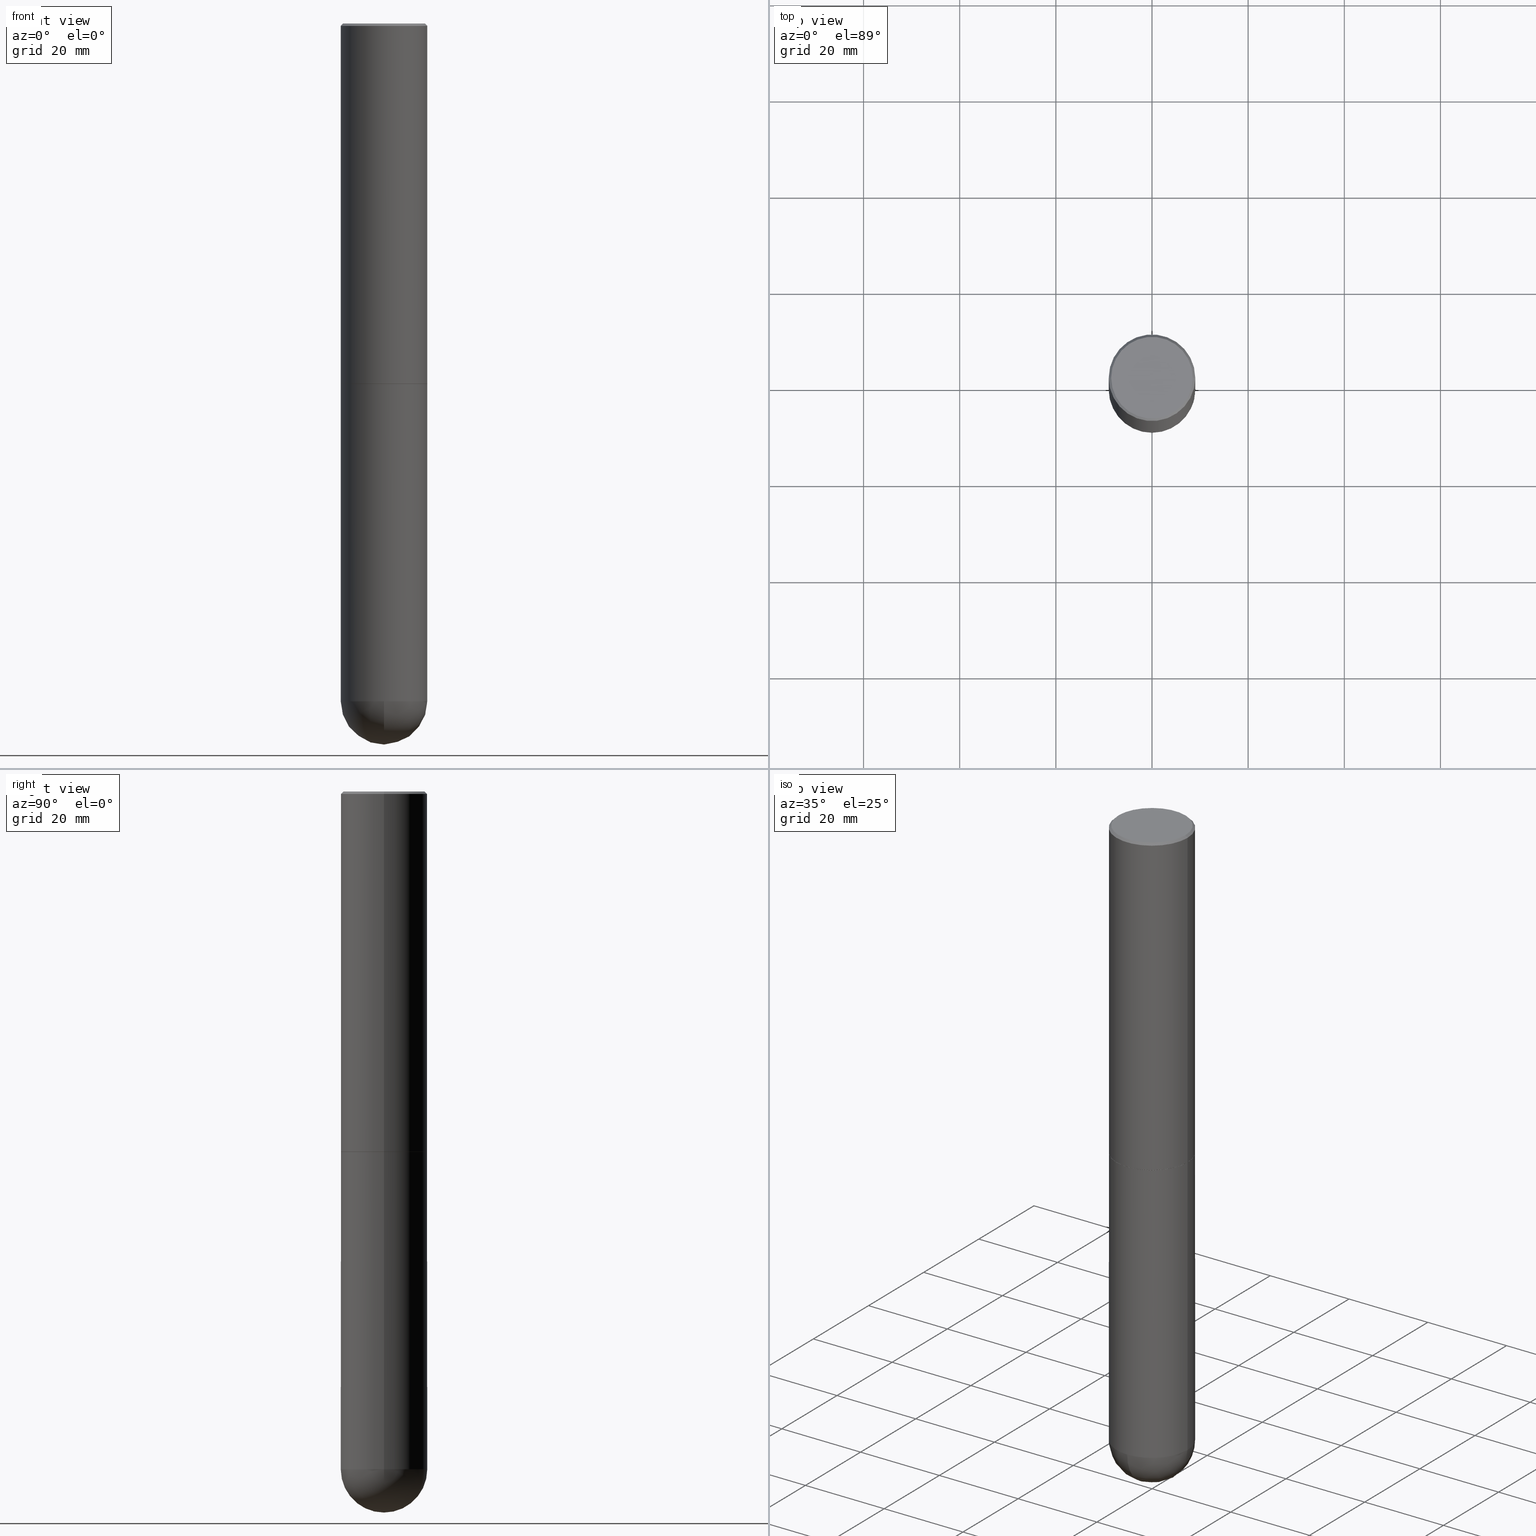
[diagram: canonical four-view strip — front | top / right | iso, engineering-drawing reading convention]
A machine part, canonical four-view strip (front | top / right | iso — engineering-drawing reading convention). The complete STEP part file that produces these views, byte-faithful:
ISO-10303-21;
HEADER;
FILE_DESCRIPTION (( 'STEP AP203' ),
    '1' );
FILE_NAME ('49580.STEP',
    '2024-04-10T12:28:57',
    ( '' ),
    ( '' ),
    'SwSTEP 2.0',
    'SolidWorks 2023',
    '' );
FILE_SCHEMA (( 'CONFIG_CONTROL_DESIGN' ));
ENDSEC;

DATA;
#1 = DIRECTION ( 'NONE',  ( 1.000000000000000000, -6.982962677686267499E-15, 0.000000000000000000 ) ) ;
#2 = FACE_OUTER_BOUND ( 'NONE', #69, .T. ) ;
#3 = AXIS2_PLACEMENT_3D ( 'NONE', #310, #214, #154 ) ;
#4 = ORIENTED_EDGE ( 'NONE', *, *, #315, .F. ) ;
#5 = ADVANCED_BREP_SHAPE_REPRESENTATION ( '49580', ( #373, #380, #232 ), #332 ) ;
#6 = ORIENTED_EDGE ( 'NONE', *, *, #140, .T. ) ;
#7 = ADVANCED_FACE ( 'NONE', ( #362 ), #335, .T. ) ;
#8 = AXIS2_PLACEMENT_3D ( 'NONE', #55, #186, #92 ) ;
#9 = PERSON_AND_ORGANIZATION_ROLE ( 'creator' ) ;
#10 = ORIENTED_EDGE ( 'NONE', *, *, #99, .F. ) ;
#11 = PERSON_AND_ORGANIZATION ( #381, #57 ) ;
#12 = CARTESIAN_POINT ( 'NONE',  ( 7.220735744022853640E-29, -1.030929694920215659E-14, -2.952700000000000546 ) ) ;
#13 = CALENDAR_DATE ( 2024, 10, 4 ) ;
#14 = AXIS2_PLACEMENT_3D ( 'NONE', #17, #175, #179 ) ;
#15 = ORIENTED_EDGE ( 'NONE', *, *, #26, .F. ) ;
#16 = CIRCLE ( 'NONE', #220, 0.3343500000000000916 ) ;
#17 = CARTESIAN_POINT ( 'NONE',  ( 4.890937612370293302E-31, -6.982962677686318726E-17, -0.02000000000000008021 ) ) ;
#18 = EDGE_CURVE ( 'NONE', #235, #320, #323, .T. ) ;
#19 = PERSON_AND_ORGANIZATION_ROLE ( 'classification_officer' ) ;
#20 = DIRECTION ( 'NONE',  ( -2.445468806185136597E-29, 3.491481338843145583E-15, 1.000000000000000000 ) ) ;
#21 = DIRECTION ( 'NONE',  ( -1.000000000000000000, 6.982962677686266711E-15, 0.000000000000000000 ) ) ;
#22 =( NAMED_UNIT ( * ) PLANE_ANGLE_UNIT ( ) SI_UNIT ( $, .RADIAN. ) );
#23 = DIRECTION ( 'NONE',  ( 1.000000000000000000, -6.982962677686265922E-15, 0.000000000000000000 ) ) ;
#24 = CIRCLE ( 'NONE', #324, 0.3543500000000002204 ) ;
#25 = CARTESIAN_POINT ( 'NONE',  ( -0.3543499999999999983, -1.232770860749472484E-14, -2.952700000000000102 ) ) ;
#26 = EDGE_CURVE ( 'NONE', #41, #116, #259, .T. ) ;
#27 = CARTESIAN_POINT ( 'NONE',  ( 2.474412824838200480E-15, 0.3543499999999896732, -2.952700000000000990 ) ) ;
#28 = DIRECTION ( 'NONE',  ( -2.445468806185136597E-29, 3.491481338843145583E-15, 1.000000000000000000 ) ) ;
#29 = DIRECTION ( 'NONE',  ( 2.438088387897960049E-29, -3.491481338843145188E-15, -1.000000000000000000 ) ) ;
#30 = DIRECTION ( 'NONE',  ( 2.438088387897960049E-29, -3.491481338843145188E-15, -1.000000000000000000 ) ) ;
#31 = CIRCLE ( 'NONE', #202, 0.3533499999999999974 ) ;
#32 = AXIS2_PLACEMENT_3D ( 'NONE', #343, #122, #190 ) ;
#33 = CARTESIAN_POINT ( 'NONE',  ( 0.3543500000000002204, -2.474412824838130272E-15, 1.727873240503290870E-29 ) ) ;
#34 = ADVANCED_FACE ( 'NONE', ( #326 ), #177, .F. ) ;
#35 = PRODUCT_RELATED_PRODUCT_CATEGORY ( 'detail', '', ( #193 ) ) ;
#36 = ORIENTED_EDGE ( 'NONE', *, *, #70, .T. ) ;
#37 = ORIENTED_EDGE ( 'NONE', *, *, #294, .F. ) ;
#38 = ORIENTED_EDGE ( 'NONE', *, *, #173, .T. ) ;
#39 = COORDINATED_UNIVERSAL_TIME_OFFSET ( 5, 0, .BEHIND. ) ;
#40 = VECTOR ( 'NONE', #405, 39.37007874015748143 ) ;
#41 = VERTEX_POINT ( 'NONE', #306 ) ;
#42 = APPROVAL_ROLE ( '' ) ;
#43 = ORIENTED_EDGE ( 'NONE', *, *, #283, .F. ) ;
#44 = APPROVAL_ROLE ( '' ) ;
#45 = EDGE_LOOP ( 'NONE', ( #10, #132 ) ) ;
#46 = COORDINATED_UNIVERSAL_TIME_OFFSET ( 5, 0, .BEHIND. ) ;
#47 = EDGE_CURVE ( 'NONE', #97, #356, #24, .T. ) ;
#48 = CLOSED_SHELL ( 'NONE', ( #360, #344, #7, #226, #218 ) ) ;
#49 = ORIENTED_EDGE ( 'NONE', *, *, #47, .F. ) ;
#50 = CC_DESIGN_APPROVAL ( #95, ( #387 ) ) ;
#51 = CALENDAR_DATE ( 2024, 10, 4 ) ;
#52 = LINE ( 'NONE', #366, #165 ) ;
#53 = FACE_OUTER_BOUND ( 'NONE', #394, .T. ) ;
#54 = DIRECTION ( 'NONE',  ( -2.445468806185136597E-29, 3.491481338843145583E-15, 1.000000000000000000 ) ) ;
#55 = CARTESIAN_POINT ( 'NONE',  ( 0.000000000000000000, 0.000000000000000000, 0.000000000000000000 ) ) ;
#56 = AXIS2_PLACEMENT_3D ( 'NONE', #111, #230, #297 ) ;
#57 = ORGANIZATION ( 'UNSPECIFIED', 'UNSPECIFIED', '' ) ;
#58 =( LENGTH_UNIT ( ) NAMED_UNIT ( * ) SI_UNIT ( $, .METRE. ) );
#59 = DIRECTION ( 'NONE',  ( 1.000000000000000000, -6.982962677686267499E-15, 0.000000000000000000 ) ) ;
#60 = CARTESIAN_POINT ( 'NONE',  ( -2.517808184165781285E-15, -0.3543500000000196493, -5.551149999999998919 ) ) ;
#61 = DIRECTION ( 'NONE',  ( -2.445468806185136597E-29, 3.491481338843145583E-15, 1.000000000000000000 ) ) ;
#62 = FACE_OUTER_BOUND ( 'NONE', #80, .T. ) ;
#63 = CC_DESIGN_PERSON_AND_ORGANIZATION_ASSIGNMENT ( #11, #333, ( #110 ) ) ;
#64 = AXIS2_PLACEMENT_3D ( 'NONE', #115, #334, #216 ) ;
#65 = APPLICATION_CONTEXT ( 'configuration controlled 3d designs of mechanical parts and assemblies' ) ;
#66 = ORIENTED_EDGE ( 'NONE', *, *, #408, .F. ) ;
#67 = ADVANCED_FACE ( 'NONE', ( #207 ), #368, .T. ) ;
#68 = AXIS2_PLACEMENT_3D ( 'NONE', #382, #250, #313 ) ;
#69 = EDGE_LOOP ( 'NONE', ( #350, #166, #133, #172 ) ) ;
#70 = EDGE_CURVE ( 'NONE', #97, #392, #411, .T. ) ;
#71 = VERTEX_POINT ( 'NONE', #402 ) ;
#72 = APPLICATION_PROTOCOL_DEFINITION ( 'international standard', 'config_control_design', 1994, #138 ) ;
#73 = VERTEX_POINT ( 'NONE', #157 ) ;
#74 = AXIS2_PLACEMENT_3D ( 'NONE', #120, #89, #336 ) ;
#75 = APPLICATION_PROTOCOL_DEFINITION ( 'international standard', 'config_control_design', 1994, #65 ) ;
#76 = AXIS2_PLACEMENT_3D ( 'NONE', #284, #161, #187 ) ;
#77 = ORIENTED_EDGE ( 'NONE', *, *, #299, .T. ) ;
#78 = ADVANCED_FACE ( 'NONE', ( #215 ), #282, .T. ) ;
#79 = APPROVAL_STATUS ( 'not_yet_approved' ) ;
#80 = EDGE_LOOP ( 'NONE', ( #271, #77, #354, #38, #136 ) ) ;
#81 = ADVANCED_FACE ( 'NONE', ( #119 ), #403, .T. ) ;
#82 = CALENDAR_DATE ( 2024, 10, 4 ) ;
#83 = DIRECTION ( 'NONE',  ( -7.105427357601001070E-15, -1.000000000000000000, 0.000000000000000000 ) ) ;
#84 = COORDINATED_UNIVERSAL_TIME_OFFSET ( 5, 0, .BEHIND. ) ;
#85 = DIRECTION ( 'NONE',  ( -2.445468806185136597E-29, 3.491481338843145583E-15, 1.000000000000000000 ) ) ;
#86 = ORIENTED_EDGE ( 'NONE', *, *, #283, .T. ) ;
#87 = DIRECTION ( 'NONE',  ( -2.445468806185136597E-29, 3.491481338843145583E-15, 1.000000000000000000 ) ) ;
#88 = CARTESIAN_POINT ( 'NONE',  ( 0.3543499999999999983, -1.278370977404028332E-14, -2.952700000000000102 ) ) ;
#89 = DIRECTION ( 'NONE',  ( -2.445468806185136597E-29, 3.491481338843145583E-15, 1.000000000000000000 ) ) ;
#90 = CYLINDRICAL_SURFACE ( 'NONE', #8, 0.3543499999999999983 ) ;
#91 = LINE ( 'NONE', #371, #308 ) ;
#92 = DIRECTION ( 'NONE',  ( 1.000000000000000000, -6.982962677686266711E-15, 4.876176775795935793E-29 ) ) ;
#93 = DIRECTION ( 'NONE',  ( 1.000000000000000000, -6.982962677686267499E-15, 4.875777752381876907E-29 ) ) ;
#94 = CARTESIAN_POINT ( 'NONE',  ( -0.3533499999999999974, -7.793295738045619809E-15, -2.952700000000000546 ) ) ;
#95 = APPROVAL ( #325, 'UNSPECIFIED' ) ;
#96 = DIRECTION ( 'NONE',  ( -2.445468806185136597E-29, 3.491481338843145583E-15, 1.000000000000000000 ) ) ;
#97 = VERTEX_POINT ( 'NONE', #317 ) ;
#98 = ORIENTED_EDGE ( 'NONE', *, *, #26, .T. ) ;
#99 = EDGE_CURVE ( 'NONE', #71, #235, #208, .T. ) ;
#100 = ORIENTED_EDGE ( 'NONE', *, *, #244, .F. ) ;
#101 = ORIENTED_EDGE ( 'NONE', *, *, #299, .F. ) ;
#102 = LOCAL_TIME ( 8, 28, 57.00000000000000000, #46 ) ;
#103 = ORIENTED_EDGE ( 'NONE', *, *, #268, .T. ) ;
#104 = PERSON_AND_ORGANIZATION ( #381, #57 ) ;
#105 = ADVANCED_FACE ( 'NONE', ( #53 ), #189, .F. ) ;
#106 = ORIENTED_EDGE ( 'NONE', *, *, #18, .T. ) ;
#107 = ORIENTED_EDGE ( 'NONE', *, *, #47, .T. ) ;
#108 = CIRCLE ( 'NONE', #351, 0.3543499999999999428 ) ;
#109 = DIRECTION ( 'NONE',  ( 0.000000000000000000, 0.000000000000000000, 1.000000000000000000 ) ) ;
#110 = PRODUCT_DEFINITION_FORMATION_WITH_SPECIFIED_SOURCE ( 'ANY', '', #193, .NOT_KNOWN. ) ;
#111 = CARTESIAN_POINT ( 'NONE',  ( 1.324404438554073486E-28, -1.985591900225917417E-14, -5.551149999999999807 ) ) ;
#112 = EDGE_CURVE ( 'NONE', #235, #71, #31, .T. ) ;
#113 = CARTESIAN_POINT ( 'NONE',  ( 1.324404438554073486E-28, -1.985591900225917417E-14, -5.551149999999999807 ) ) ;
#114 = PERSON_AND_ORGANIZATION ( #381, #57 ) ;
#115 = CARTESIAN_POINT ( 'NONE',  ( 7.218290275216666916E-29, -1.030580546786331359E-14, -2.951700000000000212 ) ) ;
#116 = VERTEX_POINT ( 'NONE', #372 ) ;
#117 = CARTESIAN_POINT ( 'NONE',  ( -0.3543499999999999428, -1.232770860749472642E-14, -5.551149999999999807 ) ) ;
#118 = CIRCLE ( 'NONE', #358, 0.3343500000000000916 ) ;
#119 = FACE_OUTER_BOUND ( 'NONE', #300, .T. ) ;
#120 = CARTESIAN_POINT ( 'NONE',  ( 1.357516416345461774E-28, -1.938173663411912545E-14, -5.551149999999999807 ) ) ;
#121 = CARTESIAN_POINT ( 'NONE',  ( 3.235939384439181382E-45, -4.620063828179386567E-31, -1.323238871931127589E-16 ) ) ;
#122 = DIRECTION ( 'NONE',  ( -2.445468806185136597E-29, 3.491481338843145583E-15, 1.000000000000000000 ) ) ;
#123 = CARTESIAN_POINT ( 'NONE',  ( 0.3343500000000000916, -2.397327298921059104E-15, -1.323238871930961928E-16 ) ) ;
#124 = DIRECTION ( 'NONE',  ( 0.7071067811865471286, -7.319954787623254468E-15, -0.7071067811865479058 ) ) ;
#125 = DIRECTION ( 'NONE',  ( -2.445468806185136597E-29, 3.491481338843145583E-15, 1.000000000000000000 ) ) ;
#126 = AXIS2_PLACEMENT_3D ( 'NONE', #374, #87, #338 ) ;
#127 = CC_DESIGN_PERSON_AND_ORGANIZATION_ASSIGNMENT ( #104, #361, ( #193 ) ) ;
#128 = CARTESIAN_POINT ( 'NONE',  ( 7.220735744022853640E-29, -1.030929694920215659E-14, -2.952700000000000546 ) ) ;
#129 = LINE ( 'NONE', #253, #255 ) ;
#130 = CIRCLE ( 'NONE', #126, 0.3543500000000004424 ) ;
#131 = CC_DESIGN_SECURITY_CLASSIFICATION ( #319, ( #110 ) ) ;
#132 = ORIENTED_EDGE ( 'NONE', *, *, #112, .F. ) ;
#133 = ORIENTED_EDGE ( 'NONE', *, *, #294, .T. ) ;
#134 = CC_DESIGN_DATE_AND_TIME_ASSIGNMENT ( #269, #397, ( #387 ) ) ;
#135 = VECTOR ( 'NONE', #407, 39.37007874015748143 ) ;
#136 = ORIENTED_EDGE ( 'NONE', *, *, #158, .F. ) ;
#137 = VERTEX_POINT ( 'NONE', #88 ) ;
#138 = APPLICATION_CONTEXT ( 'configuration controlled 3d designs of mechanical parts and assemblies' ) ;
#139 = APPROVAL_STATUS ( 'not_yet_approved' ) ;
#140 = EDGE_CURVE ( 'NONE', #392, #348, #316, .T. ) ;
#141 = DIRECTION ( 'NONE',  ( -2.438088387897960049E-29, 3.491481338843145188E-15, 1.000000000000000000 ) ) ;
#142 = CONICAL_SURFACE ( 'NONE', #231, 0.3533499999999999974, 0.7853981633974824739 ) ;
#143 = APPROVAL_PERSON_ORGANIZATION ( #395, #327, #42 ) ;
#144 = EDGE_LOOP ( 'NONE', ( #6, #291, #385, #239, #233 ) ) ;
#145 = DIMENSIONAL_EXPONENTS ( 1.000000000000000000, 0.000000000000000000, 0.000000000000000000, 0.000000000000000000, 0.000000000000000000, 0.000000000000000000, 0.000000000000000000 ) ;
#146 = APPROVAL_DATE_TIME ( #272, #188 ) ;
#147 = LENGTH_MEASURE_WITH_UNIT ( LENGTH_MEASURE( 0.02539999999999999897 ), #58 );
#148 = ORIENTED_EDGE ( 'NONE', *, *, #158, .T. ) ;
#149 = CALENDAR_DATE ( 2024, 10, 4 ) ;
#150 = DIRECTION ( 'NONE',  ( 6.982962677686265922E-15, 1.000000000000000000, -3.083784951222533328E-15 ) ) ;
#151 = CARTESIAN_POINT ( 'NONE',  ( 1.324404438554073486E-28, -1.985591900225917417E-14, -5.551149999999999807 ) ) ;
#152 = CONICAL_SURFACE ( 'NONE', #76, 0.3543499999999999983, 0.7853981633974477239 ) ;
#153 = CARTESIAN_POINT ( 'NONE',  ( -0.3543499999999999983, 2.404583198061265396E-15, -0.02000000000000008021 ) ) ;
#154 = DIRECTION ( 'NONE',  ( 1.000000000000000000, -6.982962677686266711E-15, 0.000000000000000000 ) ) ;
#155 = DIRECTION ( 'NONE',  ( 1.000000000000000000, -6.982962677686267499E-15, 4.875777752381876907E-29 ) ) ;
#156 = DIRECTION ( 'NONE',  ( -1.000000000000000000, 6.982962677686265922E-15, -4.883557194083112340E-29 ) ) ;
#157 = CARTESIAN_POINT ( 'NONE',  ( 0.3543500000000004424, -1.278021829270144662E-14, -2.951700000000000212 ) ) ;
#158 = EDGE_CURVE ( 'NONE', #289, #137, #254, .T. ) ;
#159 = DIRECTION ( 'NONE',  ( -1.000000000000000000, 6.982962677686265922E-15, -4.876176775795935793E-29 ) ) ;
#160 = VECTOR ( 'NONE', #206, 39.37007874015748854 ) ;
#161 = DIRECTION ( 'NONE',  ( 2.445468806185136597E-29, -3.491481338843145583E-15, -1.000000000000000000 ) ) ;
#162 = VERTEX_POINT ( 'NONE', #123 ) ;
#163 = ORIENTED_EDGE ( 'NONE', *, *, #180, .T. ) ;
#164 = AXIS2_PLACEMENT_3D ( 'NONE', #277, #274, #23 ) ;
#165 = VECTOR ( 'NONE', #124, 39.37007874015748143 ) ;
#166 = ORIENTED_EDGE ( 'NONE', *, *, #315, .T. ) ;
#167 = ORIENTED_EDGE ( 'NONE', *, *, #244, .T. ) ;
#168 = EDGE_CURVE ( 'NONE', #73, #116, #342, .T. ) ;
#169 = ORIENTED_EDGE ( 'NONE', *, *, #369, .F. ) ;
#170 = PRODUCT_DEFINITION_SHAPE ( 'NONE', 'NONE',  #387 ) ;
#171 = AXIS2_PLACEMENT_3D ( 'NONE', #345, #241, #182 ) ;
#172 = ORIENTED_EDGE ( 'NONE', *, *, #180, .F. ) ;
#173 = EDGE_CURVE ( 'NONE', #290, #137, #221, .T. ) ;
#174 = EDGE_LOOP ( 'NONE', ( #229, #264, #167, #225 ) ) ;
#175 = DIRECTION ( 'NONE',  ( -2.445468806185136597E-29, 3.491481338843145583E-15, 1.000000000000000000 ) ) ;
#176 = DIRECTION ( 'NONE',  ( 1.000000000000000000, 0.000000000000000000, 0.000000000000000000 ) ) ;
#177 = PLANE ( 'NONE',  #347 ) ;
#178 = PERSON_AND_ORGANIZATION ( #381, #57 ) ;
#179 = DIRECTION ( 'NONE',  ( 1.000000000000000000, -6.982962677686266711E-15, 0.000000000000000000 ) ) ;
#180 = EDGE_CURVE ( 'NONE', #213, #41, #379, .T. ) ;
#181 = CYLINDRICAL_SURFACE ( 'NONE', #389, 0.3543499999999999983 ) ;
#182 = DIRECTION ( 'NONE',  ( 1.000000000000000000, -6.982962677686266711E-15, 4.876176775795935793E-29 ) ) ;
#183 = LINE ( 'NONE', #401, #377 ) ;
#184 = CIRCLE ( 'NONE', #3, 0.3543499999999999983 ) ;
#185 = APPROVAL_PERSON_ORGANIZATION ( #114, #95, #44 ) ;
#186 = DIRECTION ( 'NONE',  ( -2.445468806185136597E-29, 3.491481338843145583E-15, 1.000000000000000000 ) ) ;
#187 = DIRECTION ( 'NONE',  ( -1.000000000000000000, 6.982962677686266711E-15, 0.000000000000000000 ) ) ;
#188 = APPROVAL ( #139, 'UNSPECIFIED' ) ;
#189 = PLANE ( 'NONE',  #227 ) ;
#190 = DIRECTION ( 'NONE',  ( 1.000000000000000000, -6.982962677686261189E-15, 0.000000000000000000 ) ) ;
#191 = DIRECTION ( 'NONE',  ( 1.000000000000000000, -6.982962677686265922E-15, 0.000000000000000000 ) ) ;
#192 = FACE_OUTER_BOUND ( 'NONE', #295, .T. ) ;
#193 = PRODUCT ( '49580', '49580', '', ( #355 ) ) ;
#194 = EDGE_LOOP ( 'NONE', ( #367, #107, #101, #201 ) ) ;
#195 = UNCERTAINTY_MEASURE_WITH_UNIT (LENGTH_MEASURE( 1.000000000000000082E-05 ), #398, 'distance_accuracy_value', 'NONE');
#196 = AXIS2_PLACEMENT_3D ( 'NONE', #223, #61, #191 ) ;
#197 = LOCAL_TIME ( 8, 28, 57.00000000000000000, #84 ) ;
#198 = EDGE_CURVE ( 'NONE', #162, #213, #118, .T. ) ;
#199 = EDGE_LOOP ( 'NONE', ( #49, #36, #66, #390 ) ) ;
#200 = PERSON_AND_ORGANIZATION ( #381, #57 ) ;
#201 = ORIENTED_EDGE ( 'NONE', *, *, #140, .F. ) ;
#202 = AXIS2_PLACEMENT_3D ( 'NONE', #217, #125, #251 ) ;
#203 = CARTESIAN_POINT ( 'NONE',  ( 0.000000000000000000, 0.000000000000000000, 0.000000000000000000 ) ) ;
#204 = CARTESIAN_POINT ( 'NONE',  ( -0.3533499999999999974, -7.798594192393843789E-15, -2.952700000000000546 ) ) ;
#205 = DATE_AND_TIME ( #13, #288 ) ;
#206 = DIRECTION ( 'NONE',  ( -0.7071067811865715536, 7.493145998870439357E-15, 0.7071067811865232589 ) ) ;
#207 = FACE_OUTER_BOUND ( 'NONE', #256, .T. ) ;
#208 = CIRCLE ( 'NONE', #340, 0.3533499999999999974 ) ;
#209 = DATE_AND_TIME ( #330, #341 ) ;
#210 = CIRCLE ( 'NONE', #32, 0.3543499999999999428 ) ;
#211 = CARTESIAN_POINT ( 'NONE',  ( 3.235939384439181382E-45, -4.620063828179386567E-31, -1.323238871931127589E-16 ) ) ;
#212 = ADVANCED_FACE ( 'NONE', ( #224 ), #142, .T. ) ;
#213 = VERTEX_POINT ( 'NONE', #370 ) ;
#214 = DIRECTION ( 'NONE',  ( -2.445468806185136597E-29, 3.491481338843145583E-15, 1.000000000000000000 ) ) ;
#215 = FACE_OUTER_BOUND ( 'NONE', #359, .T. ) ;
#216 = DIRECTION ( 'NONE',  ( 1.000000000000000000, -6.982962677686268288E-15, 0.000000000000000000 ) ) ;
#217 = CARTESIAN_POINT ( 'NONE',  ( 7.220735744022853640E-29, -1.030929694920215659E-14, -2.952700000000000546 ) ) ;
#218 = ADVANCED_FACE ( 'NONE', ( #62 ), #90, .T. ) ;
#219 = CARTESIAN_POINT ( 'NONE',  ( 0.3543499999999999428, -1.731992961649876932E-14, -5.551149999999999807 ) ) ;
#220 = AXIS2_PLACEMENT_3D ( 'NONE', #211, #54, #93 ) ;
#221 = LINE ( 'NONE', #246, #40 ) ;
#222 = DIRECTION ( 'NONE',  ( -2.445468806185136877E-29, 3.491481338843145188E-15, 1.000000000000000000 ) ) ;
#223 = CARTESIAN_POINT ( 'NONE',  ( 7.220735744022852519E-29, -1.030929694920215502E-14, -2.952700000000000102 ) ) ;
#224 = FACE_OUTER_BOUND ( 'NONE', #174, .T. ) ;
#225 = ORIENTED_EDGE ( 'NONE', *, *, #268, .F. ) ;
#226 = ADVANCED_FACE ( 'NONE', ( #192 ), #311, .F. ) ;
#227 = AXIS2_PLACEMENT_3D ( 'NONE', #410, #30, #159 ) ;
#228 =( NAMED_UNIT ( * ) SI_UNIT ( $, .STERADIAN. ) SOLID_ANGLE_UNIT ( ) );
#229 = ORIENTED_EDGE ( 'NONE', *, *, #18, .F. ) ;
#230 = DIRECTION ( 'NONE',  ( -1.000000000000000000, 6.982962677686265922E-15, -4.883557194083112340E-29 ) ) ;
#231 = AXIS2_PLACEMENT_3D ( 'NONE', #375, #346, #59 ) ;
#232 = AXIS2_PLACEMENT_3D ( 'NONE', #203, #109, #176 ) ;
#233 = ORIENTED_EDGE ( 'NONE', *, *, #408, .T. ) ;
#234 = APPROVAL_DATE_TIME ( #205, #95 ) ;
#235 = VERTEX_POINT ( 'NONE', #94 ) ;
#236 = EDGE_CURVE ( 'NONE', #137, #289, #393, .T. ) ;
#237 = PERSON_AND_ORGANIZATION_ROLE ( 'design_supplier' ) ;
#238 = CYLINDRICAL_SURFACE ( 'NONE', #352, 0.3543500000000002204 ) ;
#239 = ORIENTED_EDGE ( 'NONE', *, *, #173, .F. ) ;
#240 = CARTESIAN_POINT ( 'NONE',  ( 2.474412824838263195E-15, 0.3543499999999804584, -5.551150000000000695 ) ) ;
#241 = DIRECTION ( 'NONE',  ( -2.445468806185136597E-29, 3.491481338843145583E-15, 1.000000000000000000 ) ) ;
#242 = CARTESIAN_POINT ( 'NONE',  ( -0.3543500000000004424, -2.670009363154166740E-15, -2.951700000000000212 ) ) ;
#243 = DIRECTION ( 'NONE',  ( -2.445468806185136597E-29, 3.491481338843145583E-15, 1.000000000000000000 ) ) ;
#244 = EDGE_CURVE ( 'NONE', #71, #73, #129, .T. ) ;
#245 = DIRECTION ( 'NONE',  ( -2.445468806185136877E-29, 3.491481338843145188E-15, 1.000000000000000000 ) ) ;
#246 = CARTESIAN_POINT ( 'NONE',  ( 0.3543499999999999983, -2.474412824838128694E-15, 1.727873240503289749E-29 ) ) ;
#247 = CARTESIAN_POINT ( 'NONE',  ( 0.000000000000000000, 0.000000000000000000, 0.000000000000000000 ) ) ;
#248 = VECTOR ( 'NONE', #339, 39.37007874015748143 ) ;
#249 = APPROVAL_PERSON_ORGANIZATION ( #363, #188, #296 ) ;
#250 = DIRECTION ( 'NONE',  ( -2.445468806185136597E-29, 3.491481338843145583E-15, 1.000000000000000000 ) ) ;
#251 = DIRECTION ( 'NONE',  ( 1.000000000000000000, -6.982962677686267499E-15, 0.000000000000000000 ) ) ;
#252 = ADVANCED_FACE ( 'NONE', ( #2 ), #152, .T. ) ;
#253 = CARTESIAN_POINT ( 'NONE',  ( 0.3533499999999999974, -1.277672681136259888E-14, -2.952700000000000546 ) ) ;
#254 = CIRCLE ( 'NONE', #164, 0.3543499999999999983 ) ;
#255 = VECTOR ( 'NONE', #383, 39.37007874015748854 ) ;
#256 = EDGE_LOOP ( 'NONE', ( #4, #169, #163, #98 ) ) ;
#257 = EDGE_LOOP ( 'NONE', ( #261, #103, #331, #15 ) ) ;
#258 = CC_DESIGN_PERSON_AND_ORGANIZATION_ASSIGNMENT ( #178, #237, ( #110 ) ) ;
#259 = CIRCLE ( 'NONE', #14, 0.3543499999999999983 ) ;
#260 = ORIENTED_EDGE ( 'NONE', *, *, #376, .T. ) ;
#261 = ORIENTED_EDGE ( 'NONE', *, *, #376, .F. ) ;
#262 = SHAPE_DEFINITION_REPRESENTATION ( #170, #5 ) ;
#263 = EDGE_CURVE ( 'NONE', #356, #290, #301, .T. ) ;
#264 = ORIENTED_EDGE ( 'NONE', *, *, #112, .T. ) ;
#265 = AXIS2_PLACEMENT_3D ( 'NONE', #314, #307, #1 ) ;
#266 = DATE_TIME_ROLE ( 'classification_date' ) ;
#267 = ORIENTED_EDGE ( 'NONE', *, *, #99, .T. ) ;
#268 = EDGE_CURVE ( 'NONE', #320, #73, #130, .T. ) ;
#269 = DATE_AND_TIME ( #51, #302 ) ;
#270 = DIRECTION ( 'NONE',  ( 1.000000000000000000, -6.982962677686266711E-15, 4.876176775795935793E-29 ) ) ;
#271 = ORIENTED_EDGE ( 'NONE', *, *, #286, .F. ) ;
#272 = DATE_AND_TIME ( #149, #102 ) ;
#273 = CARTESIAN_POINT ( 'NONE',  ( 0.000000000000000000, 0.000000000000000000, 0.000000000000000000 ) ) ;
#274 = DIRECTION ( 'NONE',  ( -2.445468806185136597E-29, 3.491481338843145583E-15, 1.000000000000000000 ) ) ;
#275 = AXIS2_PLACEMENT_3D ( 'NONE', #27, #29, #279 ) ;
#276 = DIRECTION ( 'NONE',  ( 1.000000000000000000, -6.982962677686266711E-15, 4.876176775795935793E-29 ) ) ;
#277 = CARTESIAN_POINT ( 'NONE',  ( 7.220735744022852519E-29, -1.030929694920215502E-14, -2.952700000000000102 ) ) ;
#278 = FACE_OUTER_BOUND ( 'NONE', #257, .T. ) ;
#279 = DIRECTION ( 'NONE',  ( -1.000000000000000000, 6.982962677686265922E-15, -4.876176775795935793E-29 ) ) ;
#280 = DIRECTION ( 'NONE',  ( 6.982962677686265133E-15, 1.000000000000000000, 0.000000000000000000 ) ) ;
#281 = CC_DESIGN_APPROVAL ( #327, ( #110 ) ) ;
#282 = CYLINDRICAL_SURFACE ( 'NONE', #171, 0.3543500000000002204 ) ;
#283 = EDGE_CURVE ( 'NONE', #73, #320, #384, .T. ) ;
#284 = CARTESIAN_POINT ( 'NONE',  ( 4.890937612370293302E-31, -6.982962677686318726E-17, -0.02000000000000008021 ) ) ;
#285 = ORIENTED_EDGE ( 'NONE', *, *, #369, .T. ) ;
#286 = EDGE_CURVE ( 'NONE', #348, #289, #91, .T. ) ;
#287 = AXIS2_PLACEMENT_3D ( 'NONE', #303, #399, #21 ) ;
#288 = LOCAL_TIME ( 8, 28, 57.00000000000000000, #357 ) ;
#289 = VERTEX_POINT ( 'NONE', #25 ) ;
#290 = VERTEX_POINT ( 'NONE', #219 ) ;
#291 = ORIENTED_EDGE ( 'NONE', *, *, #286, .T. ) ;
#292 = ORIENTED_EDGE ( 'NONE', *, *, #168, .F. ) ;
#293 = CLOSED_SHELL ( 'NONE', ( #81, #78, #252, #67, #318, #212, #34, #105 ) ) ;
#294 = EDGE_CURVE ( 'NONE', #116, #41, #184, .T. ) ;
#295 = EDGE_LOOP ( 'NONE', ( #386, #148 ) ) ;
#296 = APPROVAL_ROLE ( '' ) ;
#297 = DIRECTION ( 'NONE',  ( 6.982962677686265922E-15, 1.000000000000000000, -3.083784951222533328E-15 ) ) ;
#298 = DATE_AND_TIME ( #82, #197 ) ;
#299 = EDGE_CURVE ( 'NONE', #348, #356, #108, .T. ) ;
#300 = EDGE_LOOP ( 'NONE', ( #267, #106, #43, #100 ) ) ;
#301 = CIRCLE ( 'NONE', #74, 0.3543499999999999428 ) ;
#302 = LOCAL_TIME ( 8, 28, 57.00000000000000000, #322 ) ;
#303 = CARTESIAN_POINT ( 'NONE',  ( 4.890937612370293302E-31, -6.982962677686318726E-17, -0.02000000000000008021 ) ) ;
#304 = PERSON_AND_ORGANIZATION ( #381, #57 ) ;
#305 = CARTESIAN_POINT ( 'NONE',  ( 1.357516416345461774E-28, -1.938173663411912545E-14, -5.551149999999999807 ) ) ;
#306 = CARTESIAN_POINT ( 'NONE',  ( -0.3543499999999999983, 2.404583198061265396E-15, -0.02000000000000008021 ) ) ;
#307 = DIRECTION ( 'NONE',  ( -2.445468806185136597E-29, 3.491481338843145583E-15, 1.000000000000000000 ) ) ;
#308 = VECTOR ( 'NONE', #245, 39.37007874015748143 ) ;
#309 = CC_DESIGN_APPROVAL ( #188, ( #319 ) ) ;
#310 = CARTESIAN_POINT ( 'NONE',  ( 4.890937612370293302E-31, -6.982962677686318726E-17, -0.02000000000000008021 ) ) ;
#311 = PLANE ( 'NONE',  #275 ) ;
#312 = CARTESIAN_POINT ( 'NONE',  ( 1.324404438554073486E-28, -1.985591900225917417E-14, -5.551149999999999807 ) ) ;
#313 = DIRECTION ( 'NONE',  ( 1.000000000000000000, -6.982962677686261189E-15, 0.000000000000000000 ) ) ;
#314 = CARTESIAN_POINT ( 'NONE',  ( 7.220735744022853640E-29, -1.030929694920215659E-14, -2.952700000000000546 ) ) ;
#315 = EDGE_CURVE ( 'NONE', #162, #116, #52, .T. ) ;
#316 = CIRCLE ( 'NONE', #68, 0.3543499999999999428 ) ;
#317 = CARTESIAN_POINT ( 'NONE',  ( 1.412574766574097249E-28, -2.107142773501435227E-14, -5.905499999999999972 ) ) ;
#318 = ADVANCED_FACE ( 'NONE', ( #278 ), #238, .T. ) ;
#319 = SECURITY_CLASSIFICATION ( '', '', #365 ) ;
#320 = VERTEX_POINT ( 'NONE', #242 ) ;
#321 = CC_DESIGN_DATE_AND_TIME_ASSIGNMENT ( #298, #266, ( #319 ) ) ;
#322 = COORDINATED_UNIVERSAL_TIME_OFFSET ( 5, 0, .BEHIND. ) ;
#323 = LINE ( 'NONE', #204, #160 ) ;
#324 = AXIS2_PLACEMENT_3D ( 'NONE', #113, #364, #83 ) ;
#325 = APPROVAL_STATUS ( 'not_yet_approved' ) ;
#326 = FACE_OUTER_BOUND ( 'NONE', #45, .T. ) ;
#327 = APPROVAL ( #79, 'UNSPECIFIED' ) ;
#328 = APPROVAL_DATE_TIME ( #209, #327 ) ;
#329 = ORIENTED_EDGE ( 'NONE', *, *, #198, .T. ) ;
#330 = CALENDAR_DATE ( 2024, 10, 4 ) ;
#331 = ORIENTED_EDGE ( 'NONE', *, *, #168, .T. ) ;
#332 =( GEOMETRIC_REPRESENTATION_CONTEXT ( 3 ) GLOBAL_UNCERTAINTY_ASSIGNED_CONTEXT ( ( #195 ) ) GLOBAL_UNIT_ASSIGNED_CONTEXT ( ( #398, #22, #228 ) ) REPRESENTATION_CONTEXT ( 'NONE', 'WORKASPACE' ) );
#333 = PERSON_AND_ORGANIZATION_ROLE ( 'creator' ) ;
#334 = DIRECTION ( 'NONE',  ( -2.445468806185136597E-29, 3.491481338843145583E-15, 1.000000000000000000 ) ) ;
#335 = SPHERICAL_SURFACE ( 'NONE', #56, 0.3543500000000002204 ) ;
#336 = DIRECTION ( 'NONE',  ( 1.000000000000000000, -6.982962677686261189E-15, 0.000000000000000000 ) ) ;
#337 = DIRECTION ( 'NONE',  ( 1.000000000000000000, -6.982962677686267499E-15, 0.000000000000000000 ) ) ;
#338 = DIRECTION ( 'NONE',  ( 1.000000000000000000, -6.982962677686268288E-15, 0.000000000000000000 ) ) ;
#339 = DIRECTION ( 'NONE',  ( -0.7071067811865471286, 2.468850131082252722E-15, -0.7071067811865479058 ) ) ;
#340 = AXIS2_PLACEMENT_3D ( 'NONE', #128, #243, #337 ) ;
#341 = LOCAL_TIME ( 8, 28, 57.00000000000000000, #39 ) ;
#342 = LINE ( 'NONE', #33, #135 ) ;
#343 = CARTESIAN_POINT ( 'NONE',  ( 1.357516416345461774E-28, -1.938173663411912545E-14, -5.551149999999999807 ) ) ;
#344 = ADVANCED_FACE ( 'NONE', ( #409 ), #406, .T. ) ;
#345 = CARTESIAN_POINT ( 'NONE',  ( 0.000000000000000000, 0.000000000000000000, 0.000000000000000000 ) ) ;
#346 = DIRECTION ( 'NONE',  ( -2.445468806185136597E-29, 3.491481338843145583E-15, 1.000000000000000000 ) ) ;
#347 = AXIS2_PLACEMENT_3D ( 'NONE', #12, #141, #396 ) ;
#348 = VERTEX_POINT ( 'NONE', #117 ) ;
#349 = DESIGN_CONTEXT ( 'detailed design', #138, 'design' ) ;
#350 = ORIENTED_EDGE ( 'NONE', *, *, #198, .F. ) ;
#351 = AXIS2_PLACEMENT_3D ( 'NONE', #305, #20, #404 ) ;
#352 = AXIS2_PLACEMENT_3D ( 'NONE', #247, #28, #276 ) ;
#353 = CC_DESIGN_PERSON_AND_ORGANIZATION_ASSIGNMENT ( #200, #9, ( #387 ) ) ;
#354 = ORIENTED_EDGE ( 'NONE', *, *, #263, .T. ) ;
#355 = MECHANICAL_CONTEXT ( 'NONE', #65, 'mechanical' ) ;
#356 = VERTEX_POINT ( 'NONE', #60 ) ;
#357 = COORDINATED_UNIVERSAL_TIME_OFFSET ( 5, 0, .BEHIND. ) ;
#358 = AXIS2_PLACEMENT_3D ( 'NONE', #121, #96, #155 ) ;
#359 = EDGE_LOOP ( 'NONE', ( #86, #260, #37, #292 ) ) ;
#360 = ADVANCED_FACE ( 'NONE', ( #378 ), #181, .T. ) ;
#361 = PERSON_AND_ORGANIZATION_ROLE ( 'design_owner' ) ;
#362 = FACE_OUTER_BOUND ( 'NONE', #199, .T. ) ;
#363 = PERSON_AND_ORGANIZATION ( #381, #57 ) ;
#364 = DIRECTION ( 'NONE',  ( -1.000000000000000000, 7.105427357601001070E-15, -4.926315508542082329E-29 ) ) ;
#365 = SECURITY_CLASSIFICATION_LEVEL ( 'unclassified' ) ;
#366 = CARTESIAN_POINT ( 'NONE',  ( 0.3543499999999999983, -2.500847092287205690E-15, -0.02000000000000008021 ) ) ;
#367 = ORIENTED_EDGE ( 'NONE', *, *, #70, .F. ) ;
#368 = CONICAL_SURFACE ( 'NONE', #287, 0.3543499999999999983, 0.7853981633974477239 ) ;
#369 = EDGE_CURVE ( 'NONE', #213, #162, #16, .T. ) ;
#370 = CARTESIAN_POINT ( 'NONE',  ( -0.3343500000000000916, 2.369668384672834141E-15, -1.323238871931292017E-16 ) ) ;
#371 = CARTESIAN_POINT ( 'NONE',  ( -0.3543499999999999983, 2.517808184165914997E-15, -1.743024649231826066E-29 ) ) ;
#372 = CARTESIAN_POINT ( 'NONE',  ( 0.3543499999999999983, -2.500847092287205690E-15, -0.02000000000000008021 ) ) ;
#373 = MANIFOLD_SOLID_BREP ( 'Body-Move/Copy2[1]', #48 ) ;
#374 = CARTESIAN_POINT ( 'NONE',  ( 7.218290275216666916E-29, -1.030580546786331359E-14, -2.951700000000000212 ) ) ;
#375 = CARTESIAN_POINT ( 'NONE',  ( 7.220735744022853640E-29, -1.030929694920215659E-14, -2.952700000000000546 ) ) ;
#376 = EDGE_CURVE ( 'NONE', #320, #41, #183, .T. ) ;
#377 = VECTOR ( 'NONE', #222, 39.37007874015748143 ) ;
#378 = FACE_OUTER_BOUND ( 'NONE', #144, .T. ) ;
#379 = LINE ( 'NONE', #153, #248 ) ;
#380 = MANIFOLD_SOLID_BREP ( 'Body-Move/Copy2[2]', #293 ) ;
#381 = PERSON ( 'UNSPECIFIED', 'UNSPECIFIED', 'UNSPECIFIED', ('UNSPECIFIED'), ('UNSPECIFIED'), ('UNSPECIFIED') ) ;
#382 = CARTESIAN_POINT ( 'NONE',  ( 1.357516416345461774E-28, -1.938173663411912545E-14, -5.551149999999999807 ) ) ;
#383 = DIRECTION ( 'NONE',  ( 0.7071067811865715536, -2.468850131082509496E-15, 0.7071067811865232589 ) ) ;
#384 = CIRCLE ( 'NONE', #64, 0.3543500000000004424 ) ;
#385 = ORIENTED_EDGE ( 'NONE', *, *, #236, .F. ) ;
#386 = ORIENTED_EDGE ( 'NONE', *, *, #236, .T. ) ;
#387 = PRODUCT_DEFINITION ( 'UNKNOWN', '', #110, #349 ) ;
#388 = AXIS2_PLACEMENT_3D ( 'NONE', #151, #391, #280 ) ;
#389 = AXIS2_PLACEMENT_3D ( 'NONE', #273, #85, #270 ) ;
#390 = ORIENTED_EDGE ( 'NONE', *, *, #263, .F. ) ;
#391 = DIRECTION ( 'NONE',  ( 1.000000000000000000, -6.982962677686265922E-15, 4.883557194083112340E-29 ) ) ;
#392 = VERTEX_POINT ( 'NONE', #240 ) ;
#393 = CIRCLE ( 'NONE', #196, 0.3543499999999999983 ) ;
#394 = EDGE_LOOP ( 'NONE', ( #285, #329 ) ) ;
#395 = PERSON_AND_ORGANIZATION ( #381, #57 ) ;
#396 = DIRECTION ( 'NONE',  ( 1.000000000000000000, -6.982962677686265922E-15, 4.876176775795935793E-29 ) ) ;
#397 = DATE_TIME_ROLE ( 'creation_date' ) ;
#398 =( CONVERSION_BASED_UNIT ( 'INCH', #147 ) LENGTH_UNIT ( ) NAMED_UNIT ( #145 ) );
#399 = DIRECTION ( 'NONE',  ( 2.445468806185136597E-29, -3.491481338843145583E-15, -1.000000000000000000 ) ) ;
#400 = CC_DESIGN_PERSON_AND_ORGANIZATION_ASSIGNMENT ( #304, #19, ( #319 ) ) ;
#401 = CARTESIAN_POINT ( 'NONE',  ( -0.3543500000000002204, 2.517808184165916574E-15, -1.743024649231827187E-29 ) ) ;
#402 = CARTESIAN_POINT ( 'NONE',  ( 0.3533499999999999974, -1.277672681136259888E-14, -2.952700000000000546 ) ) ;
#403 = CONICAL_SURFACE ( 'NONE', #265, 0.3533499999999999974, 0.7853981633974824739 ) ;
#404 = DIRECTION ( 'NONE',  ( 1.000000000000000000, -6.982962677686261189E-15, 0.000000000000000000 ) ) ;
#405 = DIRECTION ( 'NONE',  ( -2.445468806185136877E-29, 3.491481338843145188E-15, 1.000000000000000000 ) ) ;
#406 = SPHERICAL_SURFACE ( 'NONE', #412, 0.3543500000000002204 ) ;
#407 = DIRECTION ( 'NONE',  ( -2.445468806185136877E-29, 3.491481338843145188E-15, 1.000000000000000000 ) ) ;
#408 = EDGE_CURVE ( 'NONE', #290, #392, #210, .T. ) ;
#409 = FACE_OUTER_BOUND ( 'NONE', #194, .T. ) ;
#410 = CARTESIAN_POINT ( 'NONE',  ( 2.334753571284403675E-15, 0.3343500000000000916, -1.233538729238762396E-15 ) ) ;
#411 = CIRCLE ( 'NONE', #388, 0.3543500000000002204 ) ;
#412 = AXIS2_PLACEMENT_3D ( 'NONE', #312, #156, #150 ) ;
ENDSEC;
END-ISO-10303-21;
